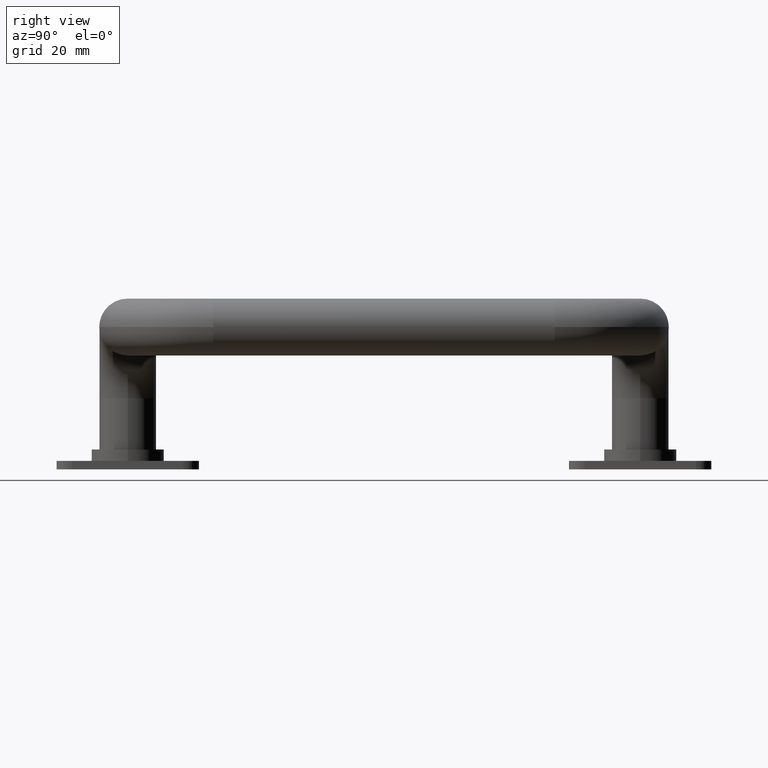
[diagram: clean part render]
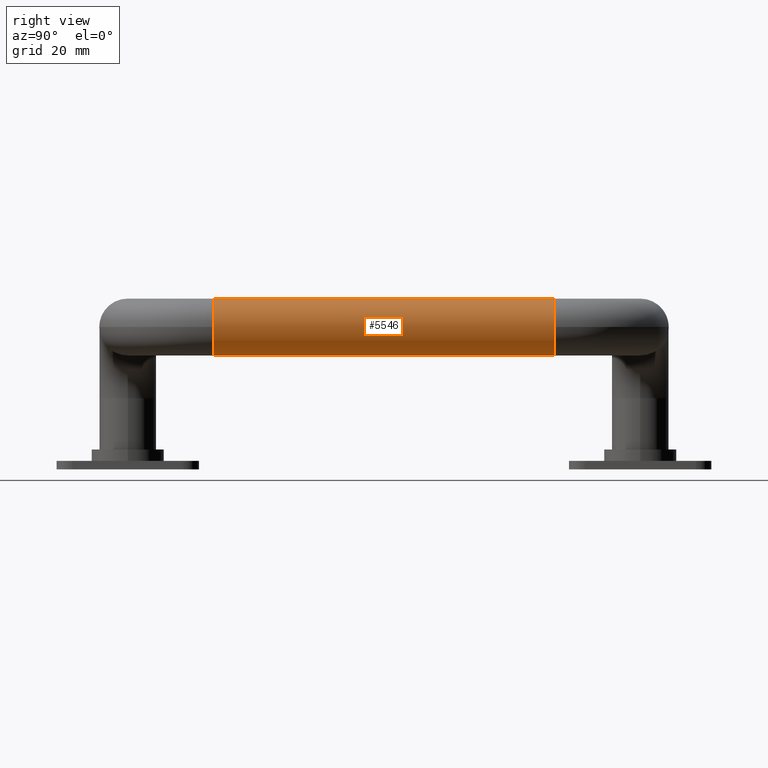
[diagram: same view with one face highlighted and labeled with its STEP entity id]
A machine part, right view. The second image highlights one B-rep face of the part: STEP entity #5546.
In plain terms, the highlighted cylindrical surface (edge-blend (fillet) strip) has radius 10 mm, axis along (0, -1, 0).
Its self-contained STEP definition (entity closure, byte-faithful):
#103 = VERTEX_POINT ( 'NONE', #2529 ) ;
#151 = DIRECTION ( 'NONE',  ( -0.000000000000000000, -1.000000000000000000, 6.938893903907228378E-17 ) ) ;
#458 = DIRECTION ( 'NONE',  ( 0.000000000000000000, -1.000000000000000000, 0.000000000000000000 ) ) ;
#526 = DIRECTION ( 'NONE',  ( 0.000000000000000000, -1.000000000000000000, 0.000000000000000000 ) ) ;
#724 = CARTESIAN_POINT ( 'NONE',  ( 70.00000000000000000, 60.00000000000000000, 40.00000000000000000 ) ) ;
#756 = ORIENTED_EDGE ( 'NONE', *, *, #6551, .F. ) ;
#776 = CARTESIAN_POINT ( 'NONE',  ( 70.00000000000000000, 60.00000000000000000, 40.00000000000000000 ) ) ;
#1197 = VECTOR ( 'NONE', #526, 1000.000000000000000 ) ;
#1331 = LINE ( 'NONE', #8870, #1197 ) ;
#1619 = AXIS2_PLACEMENT_3D ( 'NONE', #1904, #7239, #5008 ) ;
#1765 = CARTESIAN_POINT ( 'NONE',  ( 70.00000000000000000, -59.99999999999999289, 60.00000000000001421 ) ) ;
#1904 = CARTESIAN_POINT ( 'NONE',  ( 70.00000000000000000, 60.00000000000000000, 50.00000000000000000 ) ) ;
#2025 = EDGE_CURVE ( 'NONE', #2239, #4996, #2074, .T. ) ;
#2074 = LINE ( 'NONE', #776, #7442 ) ;
#2239 = VERTEX_POINT ( 'NONE', #724 ) ;
#2260 = AXIS2_PLACEMENT_3D ( 'NONE', #5653, #3271, #2549 ) ;
#2392 = ORIENTED_EDGE ( 'NONE', *, *, #2025, .F. ) ;
#2529 = CARTESIAN_POINT ( 'NONE',  ( 80.00000000000001421, 60.00000000000000000, 50.00000000000000000 ) ) ;
#2530 = EDGE_CURVE ( 'NONE', #103, #6885, #8385, .T. ) ;
#2549 = DIRECTION ( 'NONE',  ( 0.000000000000000000, 0.000000000000000000, -1.000000000000000000 ) ) ;
#2950 = CYLINDRICAL_SURFACE ( 'NONE', #4173, 10.00000000000000178 ) ;
#3271 = DIRECTION ( 'NONE',  ( -0.000000000000000000, -1.000000000000000000, 6.938893903907228378E-17 ) ) ;
#3315 = ORIENTED_EDGE ( 'NONE', *, *, #9611, .T. ) ;
#3539 = CARTESIAN_POINT ( 'NONE',  ( 80.00000000000001421, -59.99999999999999289, 50.00000000000000711 ) ) ;
#3602 = EDGE_CURVE ( 'NONE', #6885, #4683, #1331, .T. ) ;
#3616 = VERTEX_POINT ( 'NONE', #3539 ) ;
#3847 = ORIENTED_EDGE ( 'NONE', *, *, #9273, .F. ) ;
#4173 = AXIS2_PLACEMENT_3D ( 'NONE', #9665, #458, #6068 ) ;
#4264 = CARTESIAN_POINT ( 'NONE',  ( 70.00000000000000000, 60.00000000000000000, 50.00000000000000000 ) ) ;
#4683 = VERTEX_POINT ( 'NONE', #1765 ) ;
#4753 = CIRCLE ( 'NONE', #5860, 10.00000000000000178 ) ;
#4756 = CARTESIAN_POINT ( 'NONE',  ( 70.00000000000000000, -59.99999999999999289, 50.00000000000000711 ) ) ;
#4901 = ORIENTED_EDGE ( 'NONE', *, *, #2530, .T. ) ;
#4962 = DIRECTION ( 'NONE',  ( 0.000000000000000000, -1.000000000000000000, 6.938893903907228378E-17 ) ) ;
#4996 = VERTEX_POINT ( 'NONE', #8739 ) ;
#5008 = DIRECTION ( 'NONE',  ( 0.000000000000000000, 0.000000000000000000, -1.000000000000000000 ) ) ;
#5027 = DIRECTION ( 'NONE',  ( 0.000000000000000000, 0.000000000000000000, -1.000000000000000000 ) ) ;
#5056 = ORIENTED_EDGE ( 'NONE', *, *, #3602, .T. ) ;
#5059 = EDGE_LOOP ( 'NONE', ( #3315, #4901, #5056, #3847, #756, #2392 ) ) ;
#5198 = CIRCLE ( 'NONE', #8043, 10.00000000000000178 ) ;
#5546 = ADVANCED_FACE ( 'NONE', ( #9578 ), #2950, .T. ) ;
#5653 = CARTESIAN_POINT ( 'NONE',  ( 70.00000000000000000, -59.99999999999999289, 50.00000000000000711 ) ) ;
#5860 = AXIS2_PLACEMENT_3D ( 'NONE', #4756, #151, #6290 ) ;
#6058 = DIRECTION ( 'NONE',  ( 0.000000000000000000, -1.000000000000000000, 0.000000000000000000 ) ) ;
#6068 = DIRECTION ( 'NONE',  ( 0.000000000000000000, 0.000000000000000000, -1.000000000000000000 ) ) ;
#6290 = DIRECTION ( 'NONE',  ( 0.000000000000000000, 0.000000000000000000, -1.000000000000000000 ) ) ;
#6551 = EDGE_CURVE ( 'NONE', #4996, #3616, #4753, .T. ) ;
#6795 = CARTESIAN_POINT ( 'NONE',  ( 70.00000000000000000, 60.00000000000000000, 60.00000000000000711 ) ) ;
#6885 = VERTEX_POINT ( 'NONE', #6795 ) ;
#7090 = CIRCLE ( 'NONE', #2260, 10.00000000000000178 ) ;
#7239 = DIRECTION ( 'NONE',  ( 0.000000000000000000, -1.000000000000000000, 6.938893903907228378E-17 ) ) ;
#7442 = VECTOR ( 'NONE', #6058, 1000.000000000000000 ) ;
#8043 = AXIS2_PLACEMENT_3D ( 'NONE', #4264, #4962, #5027 ) ;
#8385 = CIRCLE ( 'NONE', #1619, 10.00000000000000178 ) ;
#8739 = CARTESIAN_POINT ( 'NONE',  ( 70.00000000000000000, -59.99999999999999289, 40.00000000000000711 ) ) ;
#8870 = CARTESIAN_POINT ( 'NONE',  ( 70.00000000000000000, 60.00000000000000000, 60.00000000000000711 ) ) ;
#9273 = EDGE_CURVE ( 'NONE', #3616, #4683, #7090, .T. ) ;
#9578 = FACE_OUTER_BOUND ( 'NONE', #5059, .T. ) ;
#9611 = EDGE_CURVE ( 'NONE', #2239, #103, #5198, .T. ) ;
#9665 = CARTESIAN_POINT ( 'NONE',  ( 70.00000000000000000, 60.00000000000000000, 50.00000000000000000 ) ) ;